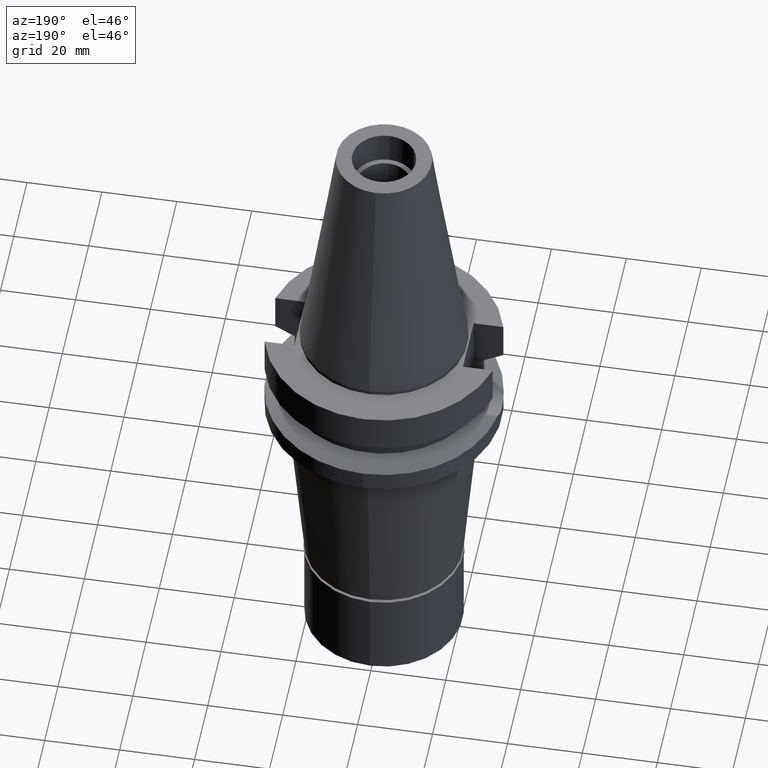
[diagram: clean part render]
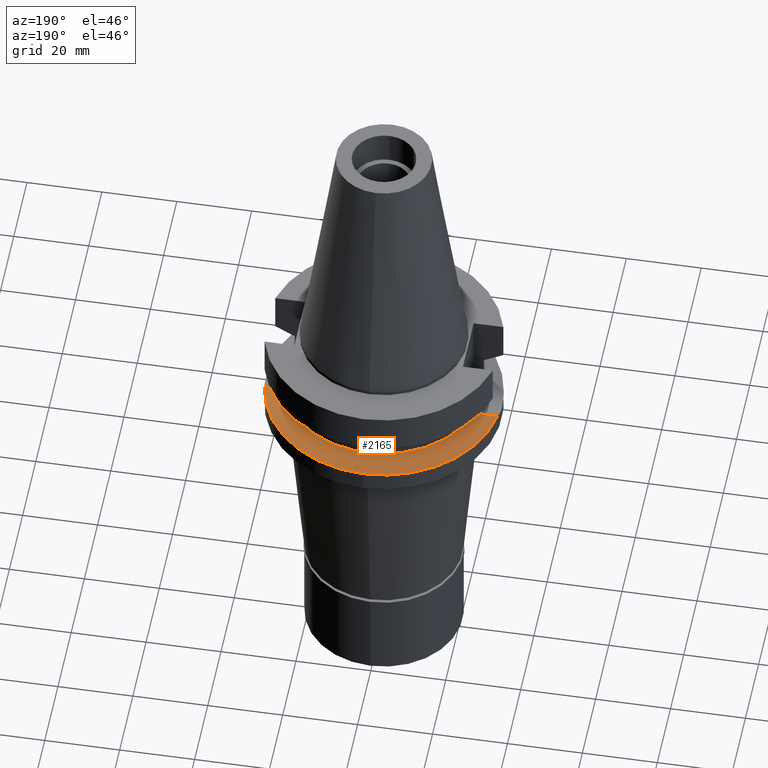
[diagram: same view with one face highlighted and labeled with its STEP entity id]
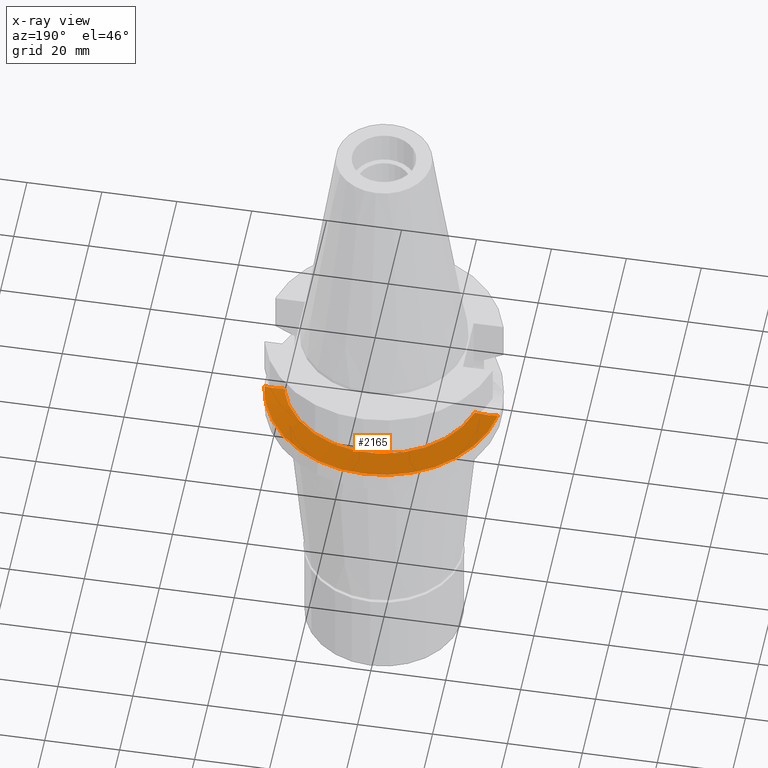
[diagram: x-ray of the same camera — body ghosted, the highlighted face saturated]
A machine part, auxiliary view. The second image highlights one B-rep face of the part: STEP entity #2165.
The next image is the same camera in x-ray: the body ghosted, the highlighted face saturated — about 0% of this face is hidden behind the body in this view.
In plain terms, the highlighted conical surface has half-angle 60 deg.
Its self-contained STEP definition (entity closure, byte-faithful):
#78 = CARTESIAN_POINT ( 'NONE',  ( -30.50647023142828829, 4.967147154568622547, -21.29199750063645524 ) ) ;
#161 = CARTESIAN_POINT ( 'NONE',  ( 31.17899877608999759, 4.485536235554000051, -21.63449434733000132 ) ) ;
#349 = ORIENTED_EDGE ( 'NONE', *, *, #1304, .F. ) ;
#513 = VERTEX_POINT ( 'NONE', #1355 ) ;
#548 = CARTESIAN_POINT ( 'NONE',  ( -28.61288747832694312, 5.993935649375059072, -20.32596355219204298 ) ) ;
#556 = DIRECTION ( 'NONE',  ( 0.0000000000000000000, 0.0000000000000000000, -1.000000000000000000 ) ) ;
#581 = CARTESIAN_POINT ( 'NONE',  ( -31.17899877608999759, 4.485536235554000051, -21.63449434733000132 ) ) ;
#661 = CARTESIAN_POINT ( 'NONE',  ( 25.53175183775000079, 7.097862220092999941, -18.74774300138999905 ) ) ;
#695 = CARTESIAN_POINT ( 'NONE',  ( 28.33685256227309068, 6.118494282841927756, -20.18421208268010503 ) ) ;
#790 = CARTESIAN_POINT ( 'NONE',  ( -27.46023059535135857, 6.472420096526161792, -19.73656702086291759 ) ) ;
#836 = EDGE_LOOP ( 'NONE', ( #2613, #1827, #2952, #1031, #349 ) ) ;
#995 = CIRCLE ( 'NONE', #1398, 31.50000000000000000 ) ;
#1025 = CARTESIAN_POINT ( 'NONE',  ( -30.86043560459573598, 4.727220125491248481, -21.47231576066581127 ) ) ;
#1031 = ORIENTED_EDGE ( 'NONE', *, *, #3089, .F. ) ;
#1037 = CARTESIAN_POINT ( 'NONE',  ( 0.0000000000000000000, 0.0000000000000000000, -18.74774300138999905 ) ) ;
#1040 = CARTESIAN_POINT ( 'NONE',  ( -27.56217836163706281, 6.433723576869279093, -19.78874405606463682 ) ) ;
#1053 = CARTESIAN_POINT ( 'NONE',  ( -27.35634242681099337, 6.511404959998487563, -19.68338999887959773 ) ) ;
#1069 = AXIS2_PLACEMENT_3D ( 'NONE', #1037, #3020, #1553 ) ;
#1100 = CARTESIAN_POINT ( 'NONE',  ( 0.0000000000000000000, 0.0000000000000000000, -20.19111867435999841 ) ) ;
#1147 = CARTESIAN_POINT ( 'NONE',  ( 26.57851350175516103, 6.789507640488529283, -19.28509494201641061 ) ) ;
#1179 = CARTESIAN_POINT ( 'NONE',  ( 29.60934980903123659, 5.537099657070091219, -20.83474315819929501 ) ) ;
#1207 = VERTEX_POINT ( 'NONE', #1730 ) ;
#1292 = CARTESIAN_POINT ( 'NONE',  ( -26.19320438406829865, 6.916040249559791242, -19.08756254551207121 ) ) ;
#1304 = EDGE_CURVE ( 'NONE', #1207, #3058, #1719, .T. ) ;
#1355 = CARTESIAN_POINT ( 'NONE',  ( 25.53175183775000079, 7.097862220092999941, -18.74774300138999905 ) ) ;
#1371 = CARTESIAN_POINT ( 'NONE',  ( -25.53175183775000079, 7.097862220092999941, -18.74774300138999905 ) ) ;
#1379 = CARTESIAN_POINT ( 'NONE',  ( 27.64386203227246241, 6.402427304253566653, -19.82996327665483705 ) ) ;
#1387 = CARTESIAN_POINT ( 'NONE',  ( 0.0000000000000000000, 31.50000000000000000, -21.63449434733000132 ) ) ;
#1398 = AXIS2_PLACEMENT_3D ( 'NONE', #1460, #1891, #2622 ) ;
#1460 = CARTESIAN_POINT ( 'NONE',  ( 0.0000000000000000000, 0.0000000000000000000, -21.63449434733000132 ) ) ;
#1509 = CARTESIAN_POINT ( 'NONE',  ( -27.79634442806895223, 6.342584017957079823, -19.90855742463576661 ) ) ;
#1528 = CARTESIAN_POINT ( 'NONE',  ( -28.37082920698262001, 6.102777614995547495, -20.20228916685055154 ) ) ;
#1536 = DIRECTION ( 'NONE',  ( -0.9898094849552905306, 0.1423979757318985240, 0.0000000000000000000 ) ) ;
#1553 = DIRECTION ( 'NONE',  ( 0.9634623335000935818, 0.2678438573619981722, 0.0000000000000000000 ) ) ;
#1566 = AXIS2_PLACEMENT_3D ( 'NONE', #1100, #3045, #2252 ) ;
#1597 = CARTESIAN_POINT ( 'NONE',  ( 27.50728183606167576, 6.454820804689050284, -19.76017765096987588 ) ) ;
#1645 = VERTEX_POINT ( 'NONE', #1934 ) ;
#1646 = CARTESIAN_POINT ( 'NONE',  ( 27.53030065959981343, 6.446040571468603098, -19.77193863041743072 ) ) ;
#1660 = CARTESIAN_POINT ( 'NONE',  ( 27.32092446076795156, 6.525242341751572361, -19.66494460753813911 ) ) ;
#1719 = CIRCLE ( 'NONE', #2026, 31.50000000000001421 ) ;
#1730 = CARTESIAN_POINT ( 'NONE',  ( -31.17899877608999759, 4.485536235554000051, -21.63449434733000132 ) ) ;
#1766 = CARTESIAN_POINT ( 'NONE',  ( -27.39191225746956349, 6.498133617558043085, -19.70159823102371277 ) ) ;
#1827 = ORIENTED_EDGE ( 'NONE', *, *, #2716, .F. ) ;
#1867 = CARTESIAN_POINT ( 'NONE',  ( 27.52154045489304934, 6.449385402127379763, -19.76746287887752374 ) ) ;
#1885 = CARTESIAN_POINT ( 'NONE',  ( 30.47189873051967623, 5.021990869603559560, -21.27451398461212762 ) ) ;
#1891 = DIRECTION ( 'NONE',  ( 0.0000000000000000000, 0.0000000000000000000, -1.000000000000000000 ) ) ;
#1934 = CARTESIAN_POINT ( 'NONE',  ( 31.17899877608999759, 4.485536235554000051, -21.63449434733000132 ) ) ;
#2015 = CARTESIAN_POINT ( 'NONE',  ( 0.0000000000000000000, 0.0000000000000000000, -21.63449434733000132 ) ) ;
#2026 = AXIS2_PLACEMENT_3D ( 'NONE', #2015, #556, #1536 ) ;
#2029 = FACE_OUTER_BOUND ( 'NONE', #836, .T. ) ;
#2101 = CARTESIAN_POINT ( 'NONE',  ( 26.07069325627981016, 6.949716459275346203, -19.02462276876092773 ) ) ;
#2135 = CARTESIAN_POINT ( 'NONE',  ( 27.17438734228130315, 6.578627857587687977, -19.59000572695287445 ) ) ;
#2165 = ADVANCED_FACE ( 'NONE', ( #2029 ), #2659, .T. ) ;
#2166 = CARTESIAN_POINT ( 'NONE',  ( 28.07263755817658435, 6.231625478461192635, -20.04911126611036210 ) ) ;
#2252 = DIRECTION ( 'NONE',  ( 0.0000000000000000000, -1.000000000000000000, 0.0000000000000000000 ) ) ;
#2280 = CARTESIAN_POINT ( 'NONE',  ( -25.53175183775000079, 7.097862220092999941, -18.74774300138999905 ) ) ;
#2291 = B_SPLINE_CURVE_WITH_KNOTS ( 'NONE', 3,
 ( #581, #1025, #78, #2992, #2733, #548, #1528, #2493, #1509, #1040, #790, #1766, #1053, #2513, #1292, #2280 ),
 .UNSPECIFIED., .F., .F.,
 ( 4, 2, 2, 2, 1, 1, 2, 2, 4 ),
 ( 0.0000000000000000000, 0.2500000000000041078, 0.5000000000000082157, 0.6250000000000097700, 0.6875000000000106581, 0.7187500000000106581, 0.7343750000000107692, 0.7500000000000107692, 1.000000000000000000 ),
 .UNSPECIFIED. ) ;
#2344 = CIRCLE ( 'NONE', #1069, 26.49999999999998224 ) ;
#2358 = EDGE_CURVE ( 'NONE', #1645, #513, #2675, .T. ) ;
#2385 = CARTESIAN_POINT ( 'NONE',  ( 27.47159729927004079, 6.468400251777196353, -19.74194454361443363 ) ) ;
#2401 = CARTESIAN_POINT ( 'NONE',  ( 27.55655092027702580, 6.435993063437921435, -19.78535087718604757 ) ) ;
#2493 = CARTESIAN_POINT ( 'NONE',  ( -27.99068209991132861, 6.263133840517656203, -20.00794080301178113 ) ) ;
#2513 = CARTESIAN_POINT ( 'NONE',  ( -26.79061543566439596, 6.720746711419129049, -19.39376597559274629 ) ) ;
#2613 = ORIENTED_EDGE ( 'NONE', *, *, #2696, .T. ) ;
#2622 = DIRECTION ( 'NONE',  ( 0.0000000000000000000, 1.000000000000000000, 0.0000000000000000000 ) ) ;
#2659 = CONICAL_SURFACE ( 'NONE', #1566, 29.00000000000000000, 1.047197551196400456 ) ;
#2675 = B_SPLINE_CURVE_WITH_KNOTS ( 'NONE', 3,
 ( #161, #1885, #1179, #695, #2166, #2832, #1379, #2401, #1646, #1867, #1597, #2385, #1660, #2135, #1147, #2101, #661 ),
 .UNSPECIFIED., .F., .F.,
 ( 4, 2, 2, 1, 2, 2, 1, 1, 2, 4 ),
 ( 0.0000000000000000000, 0.4999999999999588107, 0.6249999999999483746, 0.6562499999999448219, 0.6640624999999436007, 0.6679687499999430456, 0.6718749999999424904, 0.6874999999999453770, 0.7499999999999563682, 1.000000000000000000 ),
 .UNSPECIFIED. ) ;
#2696 = EDGE_CURVE ( 'NONE', #1207, #2973, #2291, .T. ) ;
#2716 = EDGE_CURVE ( 'NONE', #513, #2973, #2344, .T. ) ;
#2733 = CARTESIAN_POINT ( 'NONE',  ( -29.30481250191574105, 5.664022384263006415, -20.67931313656342951 ) ) ;
#2832 = CARTESIAN_POINT ( 'NONE',  ( 27.73022435962484522, 6.368494258935169405, -19.87409944679314577 ) ) ;
#2952 = ORIENTED_EDGE ( 'NONE', *, *, #2358, .F. ) ;
#2973 = VERTEX_POINT ( 'NONE', #1371 ) ;
#2992 = CARTESIAN_POINT ( 'NONE',  ( -29.72784916202513017, 5.435935986552236088, -20.89508163385302808 ) ) ;
#3020 = DIRECTION ( 'NONE',  ( 0.0000000000000000000, 0.0000000000000000000, 1.000000000000000000 ) ) ;
#3045 = DIRECTION ( 'NONE',  ( 0.0000000000000000000, 0.0000000000000000000, -1.000000000000000000 ) ) ;
#3058 = VERTEX_POINT ( 'NONE', #1387 ) ;
#3089 = EDGE_CURVE ( 'NONE', #3058, #1645, #995, .T. ) ;